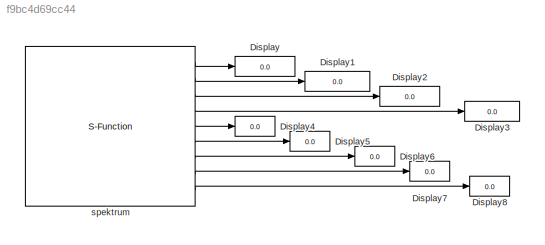
MODEL slx_f9bc4d69cc44
KIND model
CONFIG AbsTol = auto
CONFIG EnableMultiTasking = on
CONFIG FixedStep = .001
CONFIG MaxStep = auto
CONFIG MinStep = auto
CONFIG RelTol = 1e-3
CONFIG SampleTimeConstraint = Unconstrained
CONFIG Solver = FixedStepAuto
CONFIG SolverName = FixedStepAuto
CONFIG StartTime = 0.0
CONFIG StopTime = inf
BLOCK [Display] Display
  Decimation = 1
  Ports = [1]
BLOCK [Display] Display1
  Decimation = 1
  Ports = [1]
BLOCK [Display] Display2
  Decimation = 1
  Ports = [1]
BLOCK [Display] Display3
  Decimation = 1
  Ports = [1]
BLOCK [Display] Display4
  Decimation = 1
  Ports = [1]
BLOCK [Display] Display5
  Decimation = 1
  Ports = [1]
BLOCK [Display] Display6
  Decimation = 1
  Ports = [1]
BLOCK [Display] Display7
  Decimation = 1
  Ports = [1]
BLOCK [Display] Display8
  Decimation = 1
  Ports = [1]
BLOCK [S-Function] spektrum
  EnableBusSupport = off
  FunctionName = spektrum
  Ports = [0, 9]
  SFcnIsStateOwnerBlock = off
  SFunctionDeploymentMode = off
LINE spektrum:1 -> Display:1
LINE spektrum:2 -> Display1:1
LINE spektrum:3 -> Display2:1
LINE spektrum:4 -> Display3:1
LINE spektrum:5 -> Display4:1
LINE spektrum:6 -> Display5:1
LINE spektrum:7 -> Display6:1
LINE spektrum:8 -> Display7:1
LINE spektrum:9 -> Display8:1
